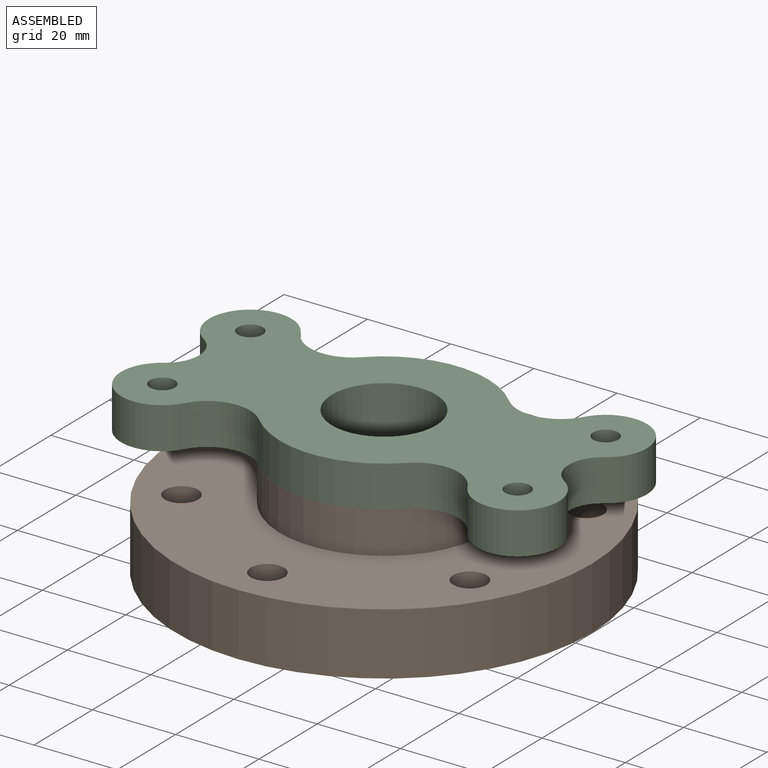
[diagram: assembled view]
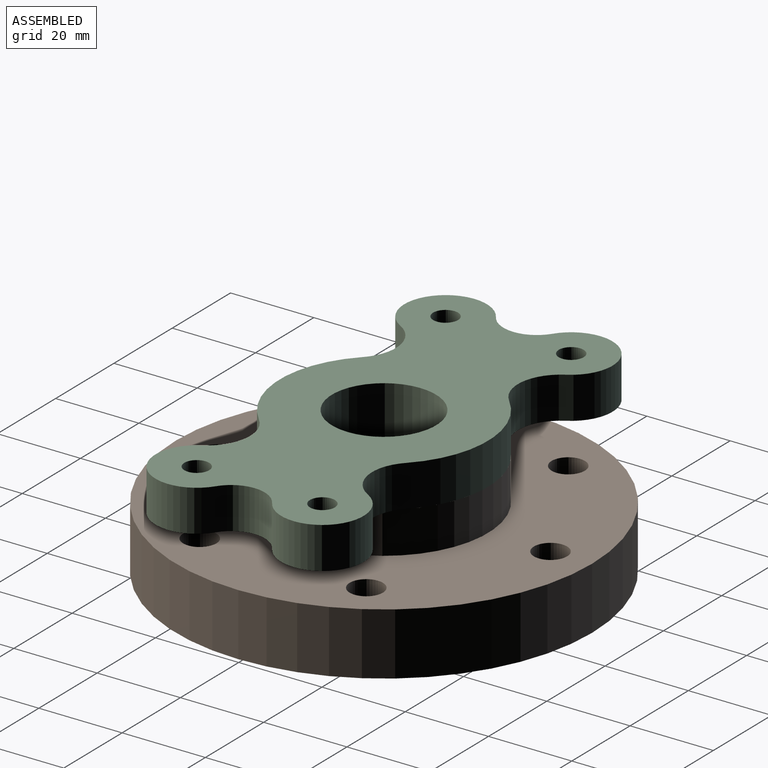
[diagram: assembled view, second angle]
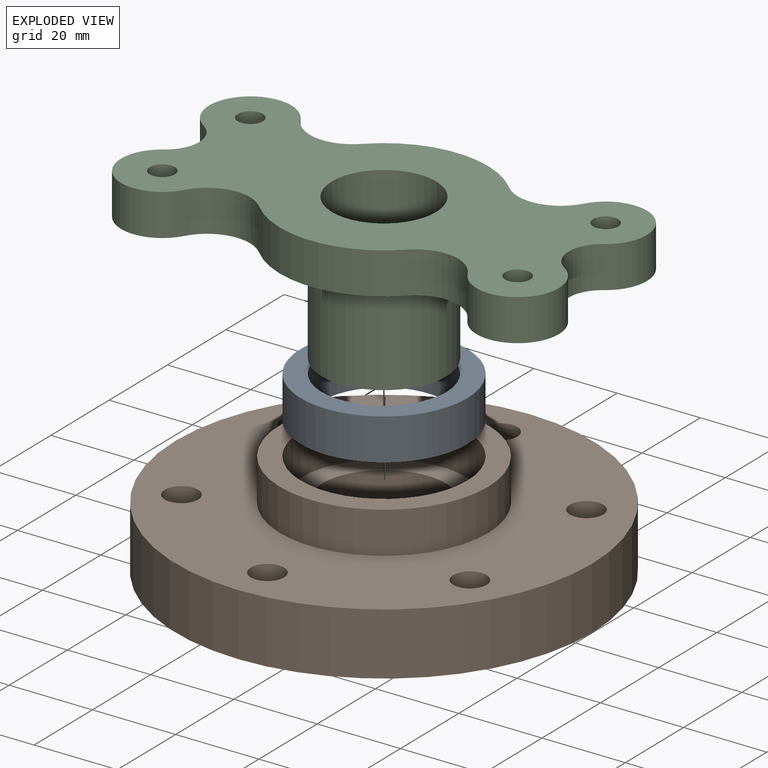
[diagram: exploded view]
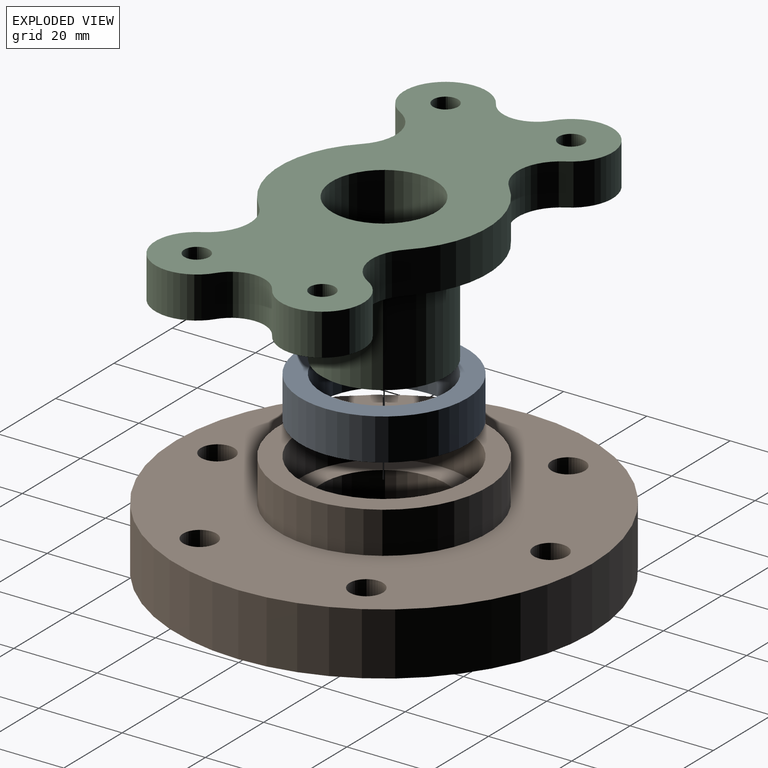
[diagram: exploded view, second angle]
ASSEMBLY  parts=3 mates=2
PART A: 4 faces, bbox 40x40x10 mm
  f0: cylinder r=15mm len=30mm, axis (0,0,-1), area 942.5mm2, adj f2,f3
  f1: cylinder r=20mm len=40mm, axis (0,0,-1), area 1256.6mm2, adj f2,f3
  f2: plane 40x40mm, normal (0,0,1), area 549.8mm2, adj f0,f1
  f3: plane 40x40mm, normal (0,0,-1), area 549.8mm2, adj f0,f1
PART B: 14 faces, bbox 100x100x25 mm
  f0: plane 40x40mm, normal (0,0,1), area 549.8mm2, adj f9,f11
  f1: cylinder r=50mm len=100mm, axis (0,0,-1), area 4712.4mm2, adj f2,f3
  f2: plane 100x100mm, normal (0,0,1), area 5588.9mm2, adj f1,f4,f5,f6,f7,f8,f10,f12
  f3: plane 100x100mm, normal (0,0,-1), area 6845.5mm2, adj f1,f4,f5,f6,f7,f8,f9,f10
  f4: cylinder r=4mm len=15mm, axis (0,0,1), area 377mm2, adj f2,f3
  f5: cylinder r=4mm len=15mm, axis (0,0,1), area 377mm2, adj f2,f3
  f6: cylinder r=4mm len=15mm, axis (0,0,1), area 377mm2, adj f2,f3
  f7: cylinder r=4mm len=15mm, axis (0,0,1), area 377mm2, adj f2,f3
  f8: cylinder r=4mm len=15mm, axis (0,0,1), area 377mm2, adj f2,f3
  f9: cylinder r=15mm len=30mm, axis (0,0,1), area 1413.7mm2, adj f0,f3
  f10: cylinder r=4mm len=15mm, axis (0,0,1), area 377mm2, adj f2,f3
  f11: cylinder r=20mm len=40mm, axis (0,0,-1), area 1256.6mm2, adj f0,f13
  f12: cylinder r=25mm len=50mm, axis (0,0,-1), area 1570.8mm2, adj f2,f13
  f13: plane 50x50mm, normal (0,0,1), area 706.9mm2, adj f11,f12
PART C: 21 faces, bbox 105.2x50x35 mm
  f0: cylinder r=15mm len=30mm, axis (0,0,-1), area 2356.2mm2, adj f1,f19
  f1: plane 30x30mm, normal (0,0,-1), area 216mm2, adj f0,f20
  f2: cylinder r=10.36mm len=16.36mm, axis (0,0,-1), area 191.1mm2, adj f3,f16,f18,f19
  f3: cylinder r=25mm len=35.36mm, axis (0,0,-1), area 392.7mm2, adj f2,f4,f18,f19
  f4: cylinder r=10.36mm len=16.36mm, axis (0,0,-1), area 191.1mm2, adj f3,f5,f18,f19
  f5: cylinder r=9.91mm len=18.56mm, axis (0,0,-1), area 359.5mm2, adj f4,f6,f18,f19
  f6: cylinder r=8.06mm len=13.54mm, axis (0,0,-1), area 160.7mm2, adj f5,f7,f18,f19
  f7: cylinder r=9.91mm len=18.56mm, axis (0,0,-1), area 359.5mm2, adj f6,f8,f18,f19
  f8: cylinder r=10.36mm len=16.36mm, axis (0,0,-1), area 191.1mm2, adj f7,f9,f18,f19
  f9: cylinder r=25mm len=35.36mm, axis (0,0,-1), area 392.7mm2, adj f8,f10,f18,f19
  f10: cylinder r=10.36mm len=16.36mm, axis (0,0,-1), area 191.1mm2, adj f9,f11,f18,f19
  f11: cylinder r=9.91mm len=18.56mm, axis (0,0,-1), area 359.5mm2, adj f10,f12,f18,f19
  f12: cylinder r=8.06mm len=13.54mm, axis (0,0,-1), area 160.7mm2, adj f11,f16,f18,f19
  f13: cylinder r=3mm len=10mm, axis (0,0,-1), area 188.5mm2, adj f18,f19
  f14: cylinder r=3mm len=10mm, axis (0,0,-1), area 188.5mm2, adj f18,f19
  f15: cylinder r=3mm len=10mm, axis (0,0,-1), area 188.5mm2, adj f18,f19
  f16: cylinder r=9.91mm len=18.56mm, axis (0,0,-1), area 359.5mm2, adj f2,f12,f18,f19
  f17: cylinder r=3mm len=10mm, axis (0,0,-1), area 188.5mm2, adj f18,f19
  f18: plane 105.18x50mm, normal (0,0,1), area 3527.2mm2, adj f2,f3,f4,f5,f6,f7,f8,f9
  f19: plane 105.18x50mm, normal (0,0,-1), area 3311.2mm2, adj f0,f2,f3,f4,f5,f6,f7,f8
  f20: cylinder r=12.5mm len=35mm, axis (0,0,1), area 2748.9mm2, adj f1,f18
PLACE A t=(105.37,2.56,-10)mm
PLACE B t=(-67.24,21.83,-25)mm
PLACE C rot(axis=(0,0,-1),180deg) t=(56.38,101.32,-25)mm
MATE fastened A.f0 <-> B.f9  axis (0,0,-1) through (-67.24,21.83,-10)mm
MATE revolute C.f0 <-> B.f9  axis (0,0,-1) through (-67.24,21.83,-25)mm
